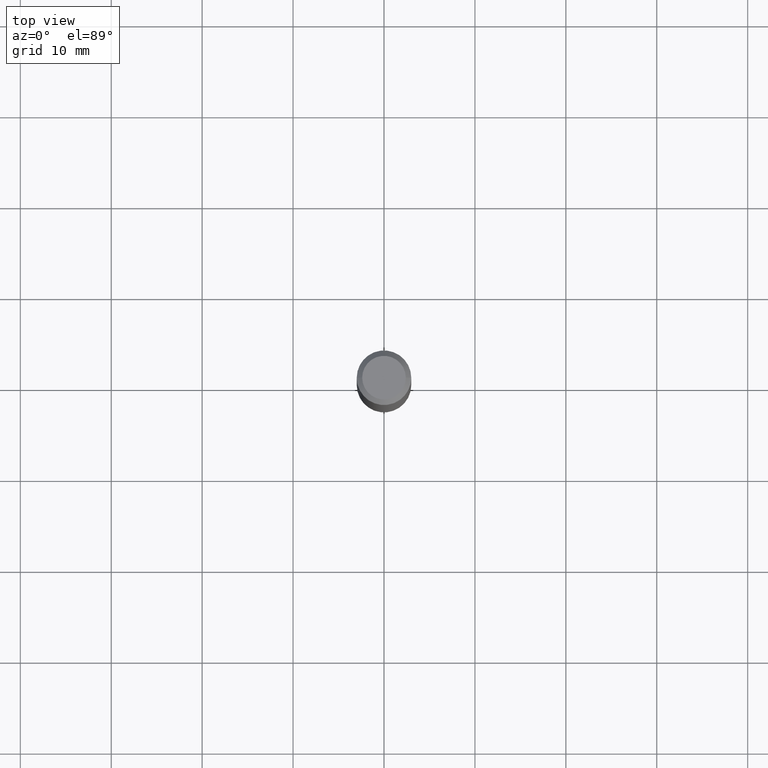
[diagram: clean part render]
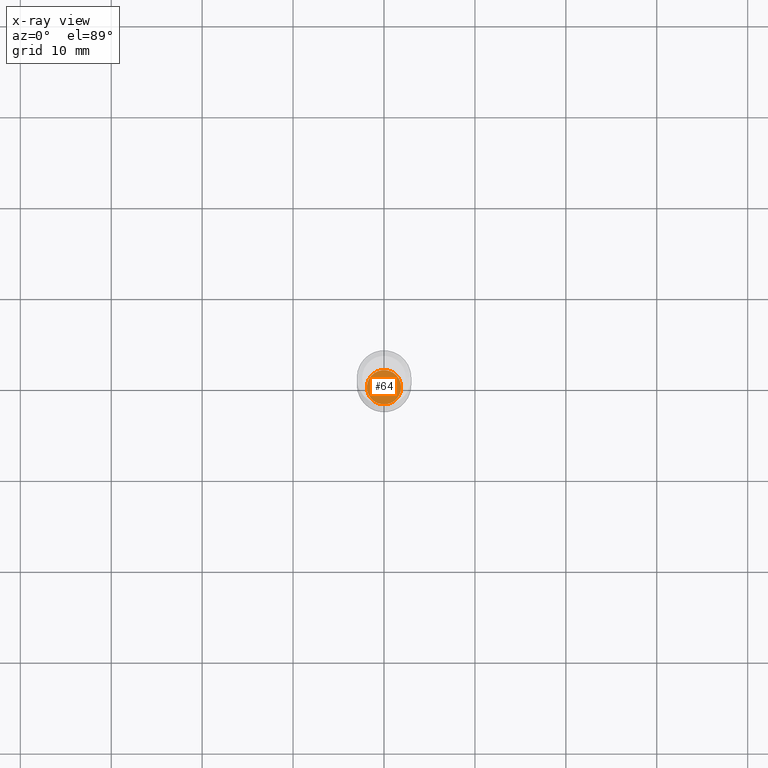
[diagram: x-ray — body ghosted, one internal face saturated and labeled with its STEP entity id]
A machine part, top view, then the same camera in x-ray: the body is ghosted and one INTERNAL B-rep face — a face not visible from any outside direction — is saturated and labeled: STEP entity #64.
In plain terms, the highlighted planar face has unit normal (-0, 0, 1).
Its self-contained STEP definition (entity closure, byte-faithful):
#32 = VERTEX_POINT ( 'NONE', #275 ) ;
#43 = AXIS2_PLACEMENT_3D ( 'NONE', #280, #516, #86 ) ;
#64 = ADVANCED_FACE ( 'NONE', ( #517 ), #78, .F. ) ;
#71 = EDGE_CURVE ( 'NONE', #32, #168, #134, .T. ) ;
#77 = DIRECTION ( 'NONE',  ( 1.000000000000000000, -6.982962677686268288E-15, 0.000000000000000000 ) ) ;
#78 = PLANE ( 'NONE',  #143 ) ;
#86 = DIRECTION ( 'NONE',  ( 1.000000000000000000, -6.982962677686268288E-15, 0.000000000000000000 ) ) ;
#130 = CARTESIAN_POINT ( 'NONE',  ( 5.873037884934224349E-29, -8.385141583365698841E-15, -2.401600000000000179 ) ) ;
#134 = CIRCLE ( 'NONE', #43, 0.07430000000000000493 ) ;
#143 = AXIS2_PLACEMENT_3D ( 'NONE', #130, #167, #390 ) ;
#153 = ORIENTED_EDGE ( 'NONE', *, *, #71, .F. ) ;
#167 = DIRECTION ( 'NONE',  ( -2.438088387897960049E-29, 3.491481338843145188E-15, 1.000000000000000000 ) ) ;
#168 = VERTEX_POINT ( 'NONE', #402 ) ;
#177 = AXIS2_PLACEMENT_3D ( 'NONE', #206, #512, #77 ) ;
#206 = CARTESIAN_POINT ( 'NONE',  ( 5.873037884934224349E-29, -8.385141583365698841E-15, -2.401600000000000179 ) ) ;
#275 = CARTESIAN_POINT ( 'NONE',  ( 0.07430000000000000493, -8.903975710317788634E-15, -2.401600000000000179 ) ) ;
#280 = CARTESIAN_POINT ( 'NONE',  ( 5.873037884934224349E-29, -8.385141583365698841E-15, -2.401600000000000179 ) ) ;
#300 = EDGE_LOOP ( 'NONE', ( #153, #423 ) ) ;
#389 = EDGE_CURVE ( 'NONE', #168, #32, #422, .T. ) ;
#390 = DIRECTION ( 'NONE',  ( 1.000000000000000000, -6.982962677686265922E-15, 4.876176775795935793E-29 ) ) ;
#402 = CARTESIAN_POINT ( 'NONE',  ( -0.07430000000000000493, -7.854559103521833758E-15, -2.401600000000000179 ) ) ;
#422 = CIRCLE ( 'NONE', #177, 0.07430000000000000493 ) ;
#423 = ORIENTED_EDGE ( 'NONE', *, *, #389, .F. ) ;
#512 = DIRECTION ( 'NONE',  ( -2.445468806185136597E-29, 3.491481338843145583E-15, 1.000000000000000000 ) ) ;
#516 = DIRECTION ( 'NONE',  ( -2.445468806185136597E-29, 3.491481338843145583E-15, 1.000000000000000000 ) ) ;
#517 = FACE_OUTER_BOUND ( 'NONE', #300, .T. ) ;